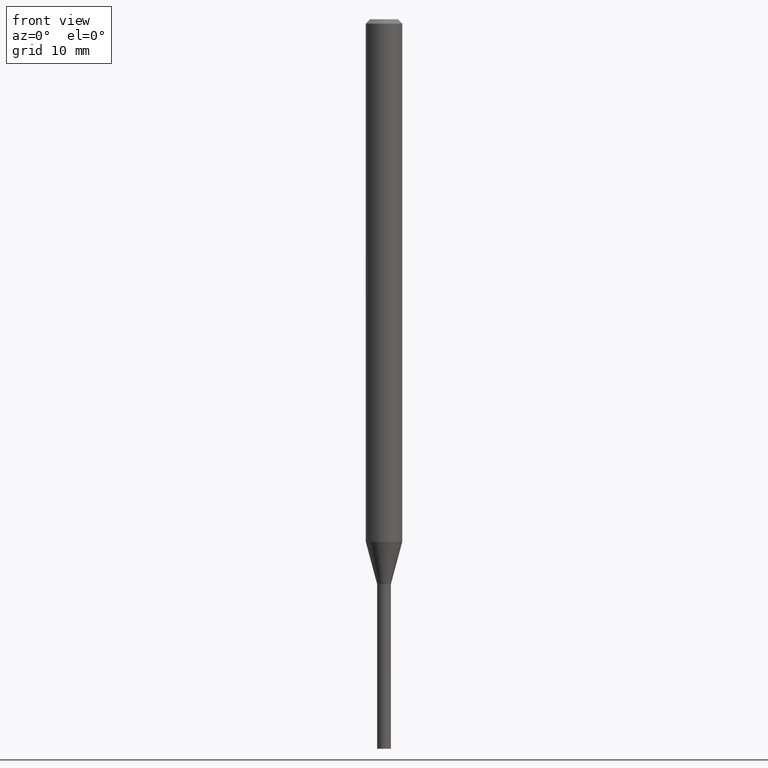
[diagram: clean part render]
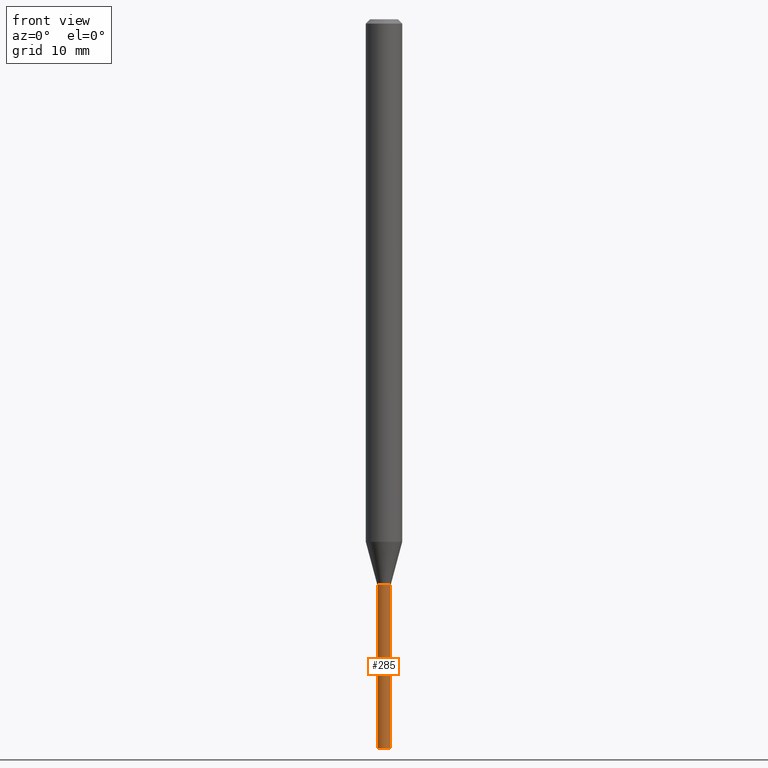
[diagram: same view with one face highlighted and labeled with its STEP entity id]
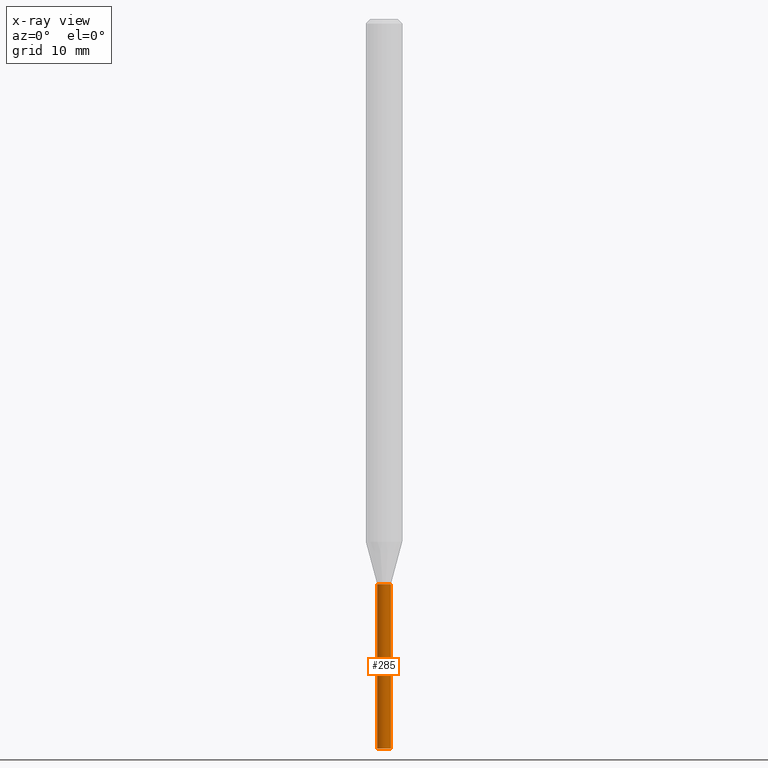
[diagram: x-ray of the same camera — body ghosted, the highlighted face saturated]
A machine part, front view. The second image highlights one B-rep face of the part: STEP entity #285.
The next image is the same camera in x-ray: the body ghosted, the highlighted face saturated — about 0% of this face is hidden behind the body in this view.
In plain terms, the highlighted cylindrical surface (edge-blend (fillet) strip) has radius 0.5969 mm, axis along (-0, 0, 1).
Its self-contained STEP definition (entity closure, byte-faithful):
#3 = CARTESIAN_POINT ( 'NONE',  ( 0.02350000000000000352, -1.640996229256272766E-16, 1.145901542312045115E-30 ) ) ;
#4 = CARTESIAN_POINT ( 'NONE',  ( 0.02350000000000000352, -6.923607494925958466E-15, -1.936000000000000387 ) ) ;
#19 = CARTESIAN_POINT ( 'NONE',  ( -0.02350000000000000352, -7.577128066650474978E-15, -1.936000000000000387 ) ) ;
#37 = CARTESIAN_POINT ( 'NONE',  ( 6.113672015462842613E-29, -8.728703347107864943E-15, -2.500000000000000000 ) ) ;
#38 = EDGE_CURVE ( 'NONE', #132, #266, #392, .T. ) ;
#49 = DIRECTION ( 'NONE',  ( -2.445468806185136597E-29, 3.491481338843145583E-15, 1.000000000000000000 ) ) ;
#51 = VERTEX_POINT ( 'NONE', #69 ) ;
#69 = CARTESIAN_POINT ( 'NONE',  ( -0.02350000000000000352, -7.577128066650474978E-15, -2.500000000000000000 ) ) ;
#74 = VECTOR ( 'NONE', #327, 39.37007874015748143 ) ;
#83 = CARTESIAN_POINT ( 'NONE',  ( -0.02350000000000000352, 1.669775429036235687E-16, -1.155949746209903035E-30 ) ) ;
#88 = DIRECTION ( 'NONE',  ( 1.000000000000000000, -6.982962677686269866E-15, 0.000000000000000000 ) ) ;
#102 = ORIENTED_EDGE ( 'NONE', *, *, #258, .T. ) ;
#116 = DIRECTION ( 'NONE',  ( 1.000000000000000000, -6.982962677686265922E-15, 4.876176775795935793E-29 ) ) ;
#132 = VERTEX_POINT ( 'NONE', #434 ) ;
#147 = AXIS2_PLACEMENT_3D ( 'NONE', #37, #318, #148 ) ;
#148 = DIRECTION ( 'NONE',  ( 1.000000000000000000, -6.982962677686228056E-15, 0.000000000000000000 ) ) ;
#152 = FACE_OUTER_BOUND ( 'NONE', #419, .T. ) ;
#163 = DIRECTION ( 'NONE',  ( -2.445468806185136877E-29, 3.491481338843145188E-15, 1.000000000000000000 ) ) ;
#194 = VECTOR ( 'NONE', #163, 39.37007874015748143 ) ;
#212 = LINE ( 'NONE', #83, #74 ) ;
#231 = DIRECTION ( 'NONE',  ( -2.445468806185136597E-29, 3.491481338843145583E-15, 1.000000000000000000 ) ) ;
#237 = EDGE_CURVE ( 'NONE', #51, #304, #212, .T. ) ;
#247 = CIRCLE ( 'NONE', #147, 0.02350000000000000352 ) ;
#258 = EDGE_CURVE ( 'NONE', #51, #132, #247, .T. ) ;
#262 = ORIENTED_EDGE ( 'NONE', *, *, #38, .T. ) ;
#266 = VERTEX_POINT ( 'NONE', #4 ) ;
#285 = ADVANCED_FACE ( 'NONE', ( #152 ), #291, .T. ) ;
#291 = CYLINDRICAL_SURFACE ( 'NONE', #356, 0.02350000000000000352 ) ;
#298 = ORIENTED_EDGE ( 'NONE', *, *, #401, .F. ) ;
#304 = VERTEX_POINT ( 'NONE', #19 ) ;
#318 = DIRECTION ( 'NONE',  ( -2.445468806185136597E-29, 3.491481338843145583E-15, 1.000000000000000000 ) ) ;
#327 = DIRECTION ( 'NONE',  ( -2.445468806185136877E-29, 3.491481338843145188E-15, 1.000000000000000000 ) ) ;
#356 = AXIS2_PLACEMENT_3D ( 'NONE', #361, #49, #116 ) ;
#361 = CARTESIAN_POINT ( 'NONE',  ( 0.000000000000000000, 0.000000000000000000, 0.000000000000000000 ) ) ;
#374 = ORIENTED_EDGE ( 'NONE', *, *, #237, .F. ) ;
#392 = LINE ( 'NONE', #3, #194 ) ;
#401 = EDGE_CURVE ( 'NONE', #304, #266, #459, .T. ) ;
#402 = CARTESIAN_POINT ( 'NONE',  ( 4.734427608774424873E-29, -6.759507872000331609E-15, -1.936000000000000387 ) ) ;
#419 = EDGE_LOOP ( 'NONE', ( #374, #102, #262, #298 ) ) ;
#434 = CARTESIAN_POINT ( 'NONE',  ( 0.02350000000000000352, -8.892802970033491011E-15, -2.500000000000000000 ) ) ;
#451 = AXIS2_PLACEMENT_3D ( 'NONE', #402, #231, #88 ) ;
#459 = CIRCLE ( 'NONE', #451, 0.02350000000000000352 ) ;